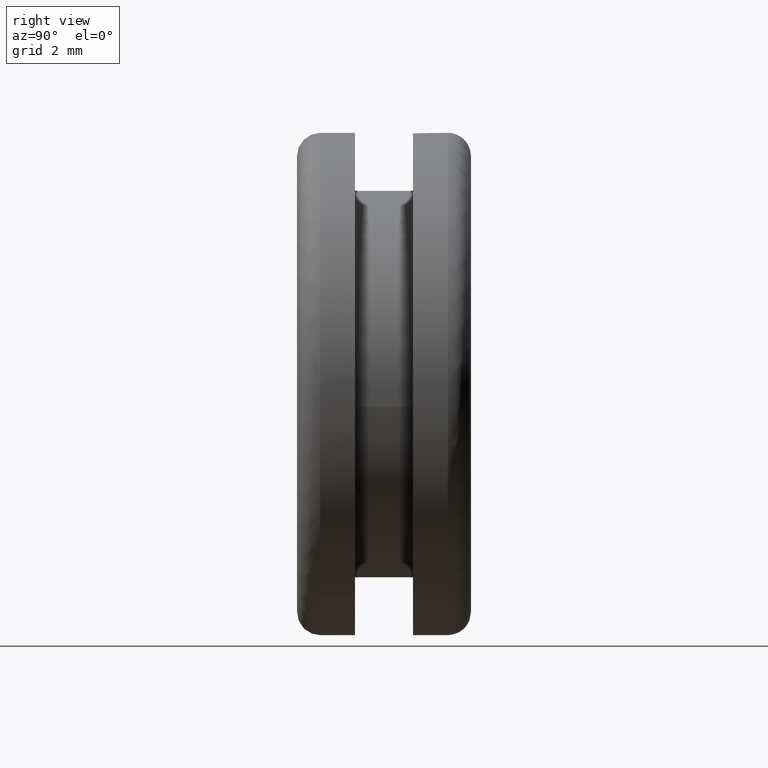
[diagram: clean part render]
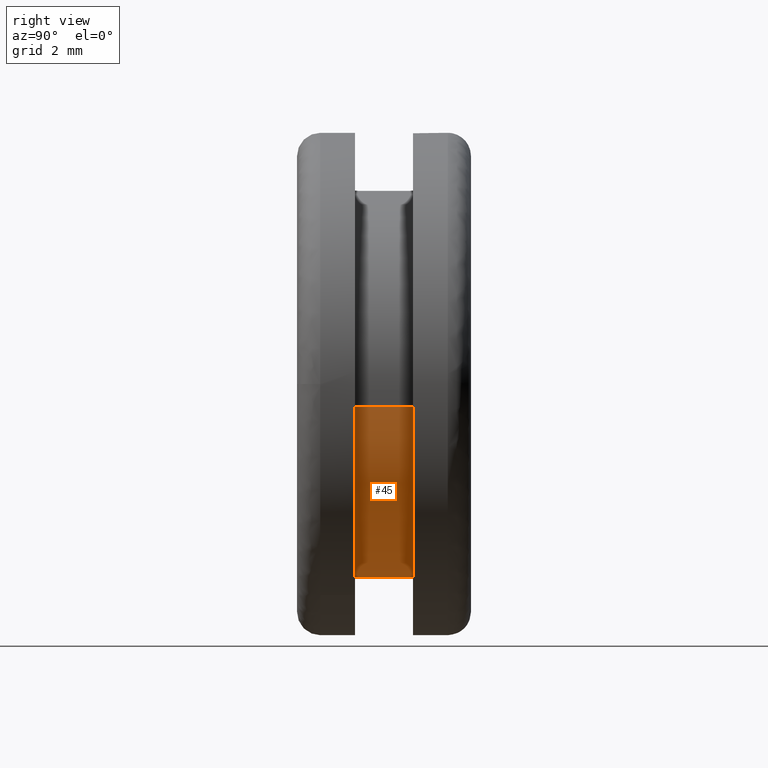
[diagram: same view with one face highlighted and labeled with its STEP entity id]
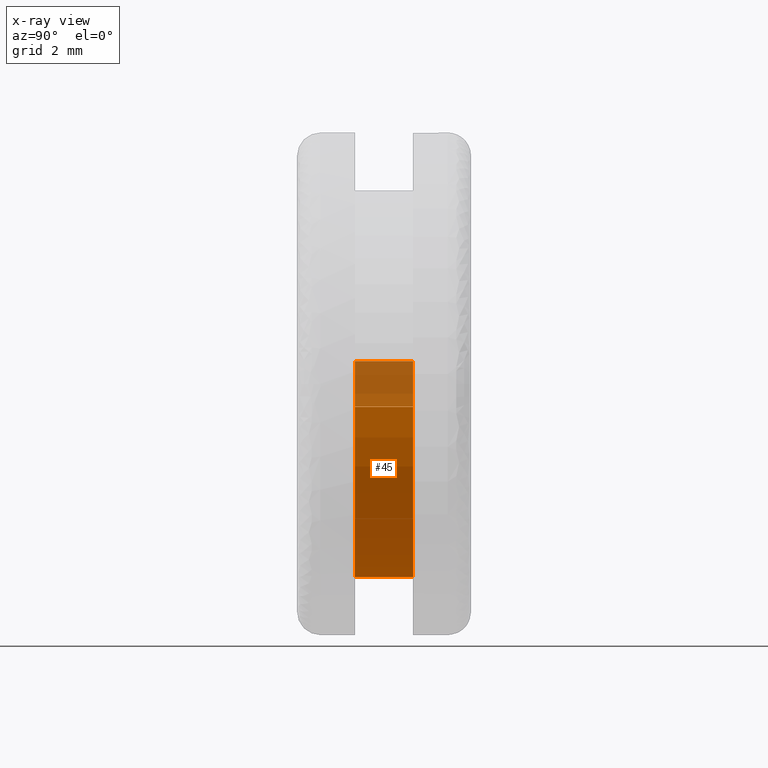
[diagram: x-ray of the same camera — body ghosted, the highlighted face saturated]
A machine part, right view. The second image highlights one B-rep face of the part: STEP entity #45.
The next image is the same camera in x-ray: the body ghosted, the highlighted face saturated — about 21% of this face is hidden behind the body in this view.
In plain terms, the highlighted cylindrical surface (partial cylindrical patch) has radius 5 mm, axis along (-0, 1, -0).
Its self-contained STEP definition (entity closure, byte-faithful):
#45=ADVANCED_FACE('',(#111),#110,.T.);
#110=CYLINDRICAL_SURFACE('',#252,5.00000000000E+000);
#111=FACE_OUTER_BOUND('',#253,.T.);
#249=CARTESIAN_POINT('',(-7.27569771743E-017,3.03750000000E+000,-1.00156952261E-015));
#250=DIRECTION('',(-1.80395372549E-016,1.00000000000E+000,-1.51764718070E-015));
#251=DIRECTION('',(-9.93009526364E-001,-3.45126646034E-031,1.18034234657E-001));
#252=AXIS2_PLACEMENT_3D('',#249,#250,#251);
#253=EDGE_LOOP('',(#416,#417,#418,#419,#420,#421));
#416=ORIENTED_EDGE('',*,*,#489,.F.);
#417=ORIENTED_EDGE('',*,*,#491,.F.);
#418=ORIENTED_EDGE('',*,*,#510,.T.);
#419=ORIENTED_EDGE('',*,*,#495,.T.);
#420=ORIENTED_EDGE('',*,*,#497,.T.);
#421=ORIENTED_EDGE('',*,*,#511,.F.);
#489=EDGE_CURVE('',#556,#557,#558,.T.);
#491=EDGE_CURVE('',#564,#556,#571,.T.);
#495=EDGE_CURVE('',#598,#599,#600,.T.);
#497=EDGE_CURVE('',#599,#606,#613,.T.);
#510=EDGE_CURVE('',#564,#598,#703,.T.);
#511=EDGE_CURVE('',#557,#606,#709,.T.);
#556=VERTEX_POINT('',#881);
#557=VERTEX_POINT('',#882);
#558=CIRCLE('',#886,5.00000000000E+000);
#564=VERTEX_POINT('',#887);
#571=CIRCLE('',#895,5.00000000000E+000);
#598=VERTEX_POINT('',#911);
#599=VERTEX_POINT('',#912);
#600=CIRCLE('',#916,5.00000000000E+000);
#606=VERTEX_POINT('',#917);
#613=CIRCLE('',#925,5.00000000000E+000);
#703=(BOUNDED_CURVE() B_SPLINE_CURVE(1,(#986,#987),.UNSPECIFIED.,.F.,.F.) B_SPLINE_CURVE_WITH_KNOTS((2,2),(8.33333532020E-002,9.16666656883E-001),.UNSPECIFIED.) CURVE() GEOMETRIC_REPRESENTATION_ITEM() RATIONAL_B_SPLINE_CURVE((1.00000000000E+000,1.00000000000E+000)) REPRESENTATION_ITEM('') );
#709=(BOUNDED_CURVE() B_SPLINE_CURVE(1,(#988,#989),.UNSPECIFIED.,.F.,.F.) B_SPLINE_CURVE_WITH_KNOTS((2,2),(8.33333333341E-002,9.16666666667E-001),.UNSPECIFIED.) CURVE() GEOMETRIC_REPRESENTATION_ITEM() RATIONAL_B_SPLINE_CURVE((7.50000000000E-001,7.50000000000E-001)) REPRESENTATION_ITEM('') );
#881=CARTESIAN_POINT('',(-2.88657986403E-015,1.50000000000E+000,-4.99999999999E+000));
#882=CARTESIAN_POINT('',(4.96494555446E+000,1.50000000000E+000,-5.91029306600E-001));
#883=CARTESIAN_POINT('',(1.73505654288E-012,1.50000000000E+000,3.81028542051E-012));
#884=DIRECTION('',(-1.77507101533E-014,-1.00000000000E+000,-1.20365586263E-013));
#885=DIRECTION('',(-3.47250006527E-013,1.20365586263E-013,-1.00000000000E+000));
#886=AXIS2_PLACEMENT_3D('',#883,#884,#885);
#887=CARTESIAN_POINT('',(-4.96504784764E+000,1.50000000000E+000,5.90169357594E-001));
#892=CARTESIAN_POINT('',(1.73505654288E-012,1.50000000000E+000,3.81028542051E-012));
#893=DIRECTION('',(-1.77507101533E-014,-1.00000000000E+000,-1.20365586263E-013));
#894=DIRECTION('',(-3.47250006527E-013,1.20365586263E-013,-1.00000000000E+000));
#895=AXIS2_PLACEMENT_3D('',#892,#893,#894);
#911=CARTESIAN_POINT('',(-4.96504784764E+000,3.00000000000E+000,5.90169357594E-001));
#912=CARTESIAN_POINT('',(-1.99840144433E-015,3.00000000000E+000,-4.99999999999E+000));
#913=CARTESIAN_POINT('',(1.69153580032E-012,3.00000000000E+000,3.71569441882E-012));
#914=DIRECTION('',(6.28582337640E-016,-1.00000000000E+000,3.78327844900E-015));
#915=DIRECTION('',(-3.38340466755E-013,-3.78327844900E-015,-1.00000000000E+000));
#916=AXIS2_PLACEMENT_3D('',#913,#914,#915);
#917=CARTESIAN_POINT('',(4.96494555446E+000,3.00000000000E+000,-5.91029306600E-001));
#922=CARTESIAN_POINT('',(1.69153580032E-012,3.00000000000E+000,3.71569441882E-012));
#923=DIRECTION('',(6.28582337640E-016,-1.00000000000E+000,3.78327844900E-015));
#924=DIRECTION('',(-3.38340466755E-013,-3.78327844900E-015,-1.00000000000E+000));
#925=AXIS2_PLACEMENT_3D('',#922,#923,#924);
#986=CARTESIAN_POINT('',(-4.96504763182E+000,1.50000003576E+000,5.90171173284E-001));
#987=CARTESIAN_POINT('',(-4.96504763182E+000,2.99999998239E+000,5.90171173284E-001));
#988=CARTESIAN_POINT('',(4.96504763182E+000,1.50000000000E+000,-5.90171173284E-001));
#989=CARTESIAN_POINT('',(4.96504763182E+000,3.00000000000E+000,-5.90171173284E-001));